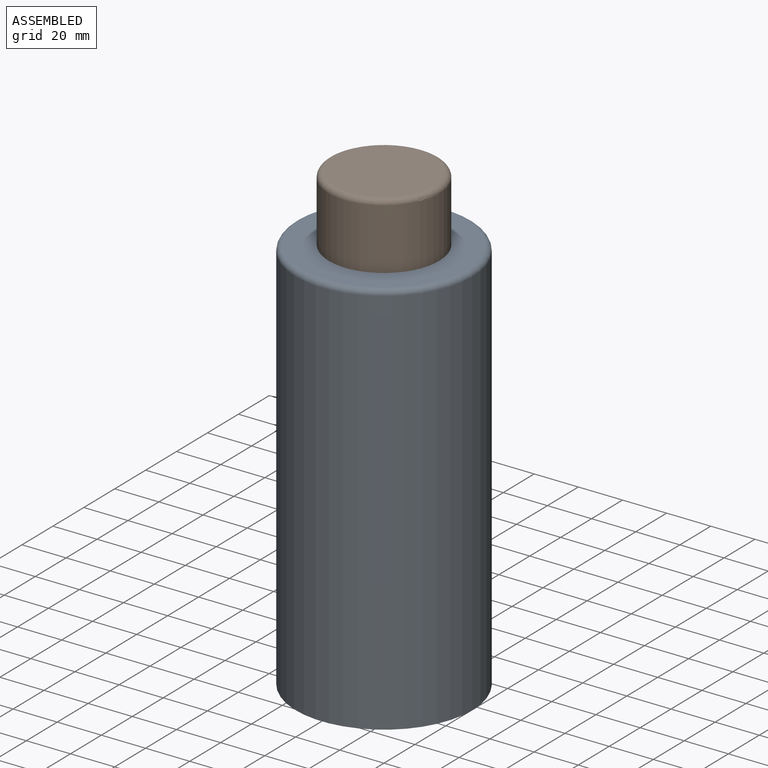
[diagram: assembled view]
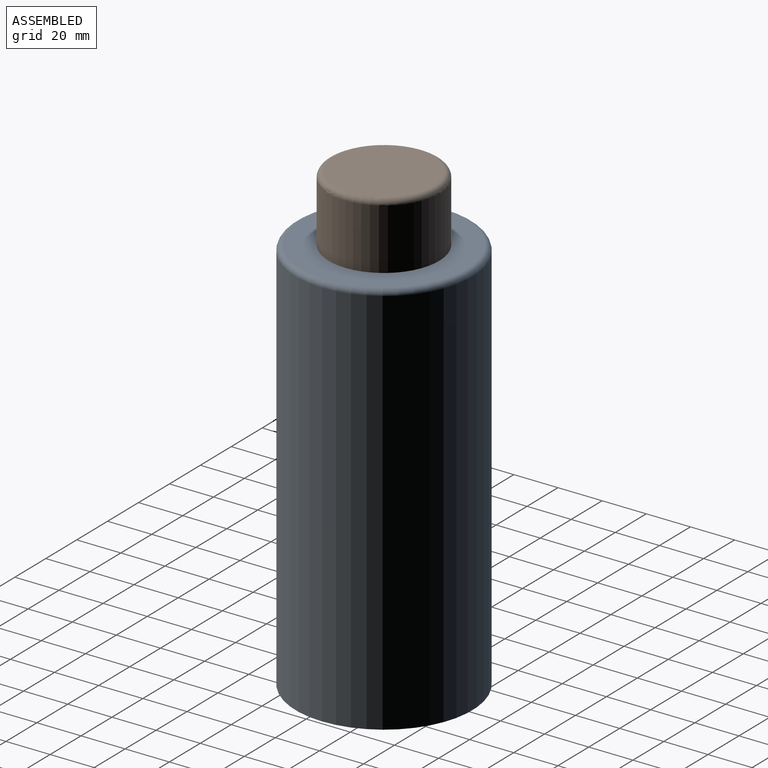
[diagram: assembled view, second angle]
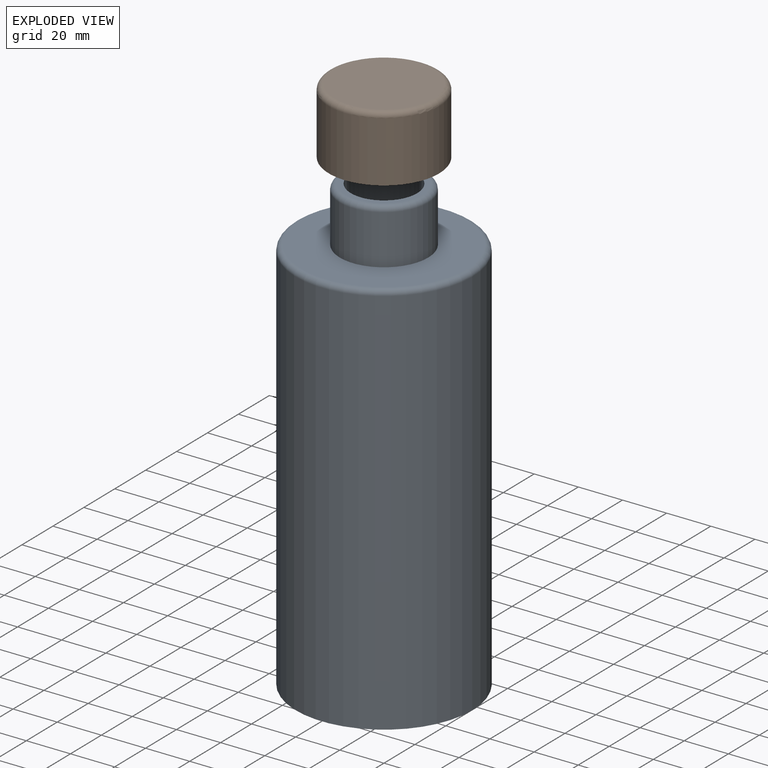
[diagram: exploded view]
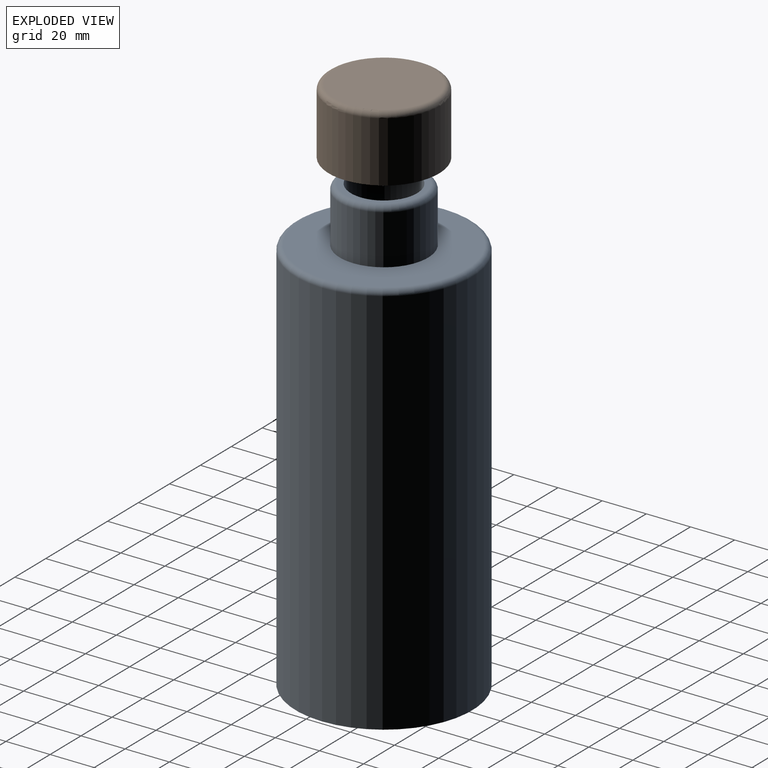
[diagram: exploded view, second angle]
ASSEMBLY  parts=2 mates=2
PART A: 11 faces, bbox 86.6x86.6x205 mm
  f0: cylinder r=40mm len=177.5mm, axis (0,0,-1), area 44610.6mm2, adj f2,f6
  f1: plane 75x75mm, normal (0,0,1), area 3161.2mm2, adj f3,f6
  f2: plane 80x80mm, normal (0,0,-1), area 5026.5mm2, adj f0
  f3: cylinder r=20mm len=40mm, axis (0,0,-1), area 2827.4mm2, adj f1,f5
  f4: plane 35x35mm, normal (0,0,1), area 255.3mm2, adj f5,f10
  f5: torus R=17.5mm, axis (0,0,1), area 471.1mm2, adj f3,f4
  f6: torus R=37.5mm, axis (0,0,1), area 964.5mm2, adj f0,f1
  f7: cylinder r=35mm len=170mm, axis (0,0,-1), area 37385mm2, adj f8,f9
  f8: plane 70x70mm, normal (0,0,-1), area 3141.6mm2, adj f7,f10
  f9: plane 70x70mm, normal (0,0,1), area 3848.5mm2, adj f7
  f10: cylinder r=15mm len=30mm, axis (0,0,-1), area 2827.4mm2, adj f4,f8
PART B: 6 faces, bbox 54.1x54.1x30 mm
  f0: cylinder r=25mm len=50mm, axis (0,0,-1), area 4319.7mm2, adj f2,f3
  f1: plane 45x45mm, normal (0,0,1), area 1590.4mm2, adj f3
  f2: plane 50x50mm, normal (0,0,-1), area 706.9mm2, adj f0,f4
  f3: torus R=22.5mm, axis (0,0,1), area 594.4mm2, adj f0,f1
  f4: cylinder r=20mm len=40mm, axis (0,0,-1), area 3141.6mm2, adj f2,f5
  f5: plane 40x40mm, normal (0,0,-1), area 1256.6mm2, adj f4
PLACE A t=(-55.34,10.51,-38.8)mm fixed
PLACE B t=(-55.34,10.51,141.2)mm
MATE cylindrical B.f0 <-> A.f0  axis (0,0,-1) through (-55.34,10.51,141.2)mm
MATE cylindrical A.f0 <-> B.f0  axis (0,0,1) through (-55.34,10.51,141.2)mm
